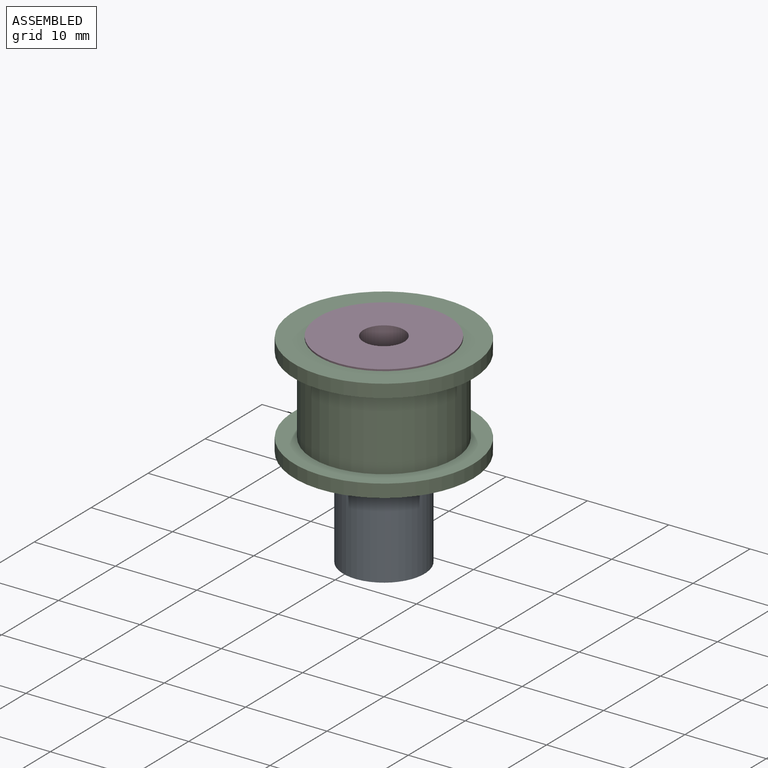
[diagram: assembled view]
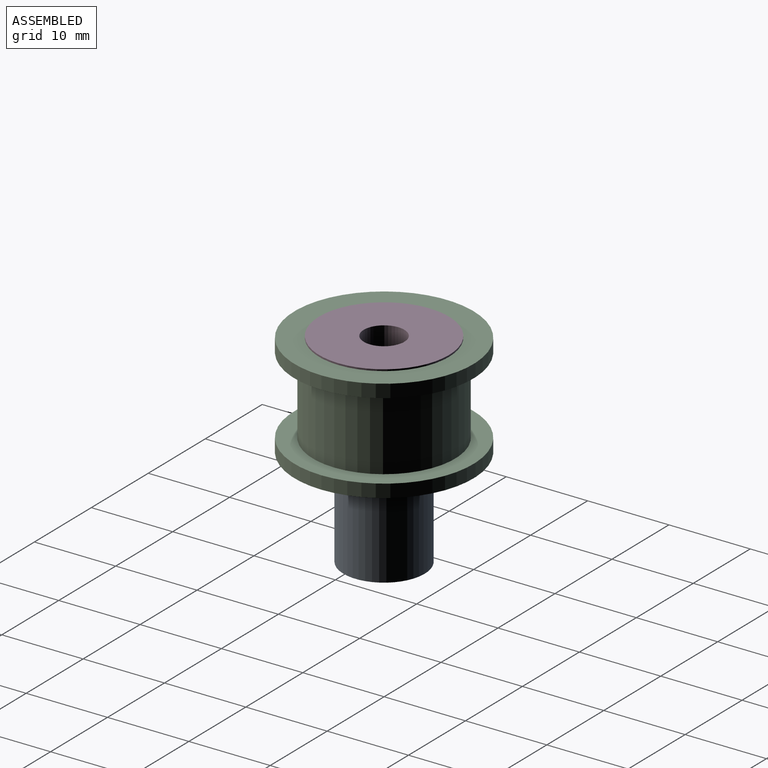
[diagram: assembled view, second angle]
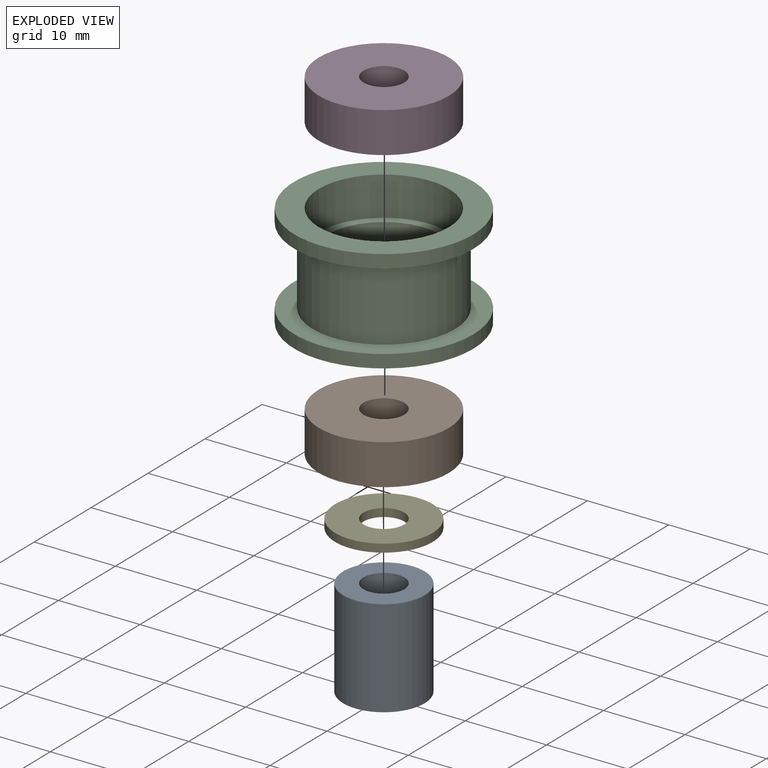
[diagram: exploded view]
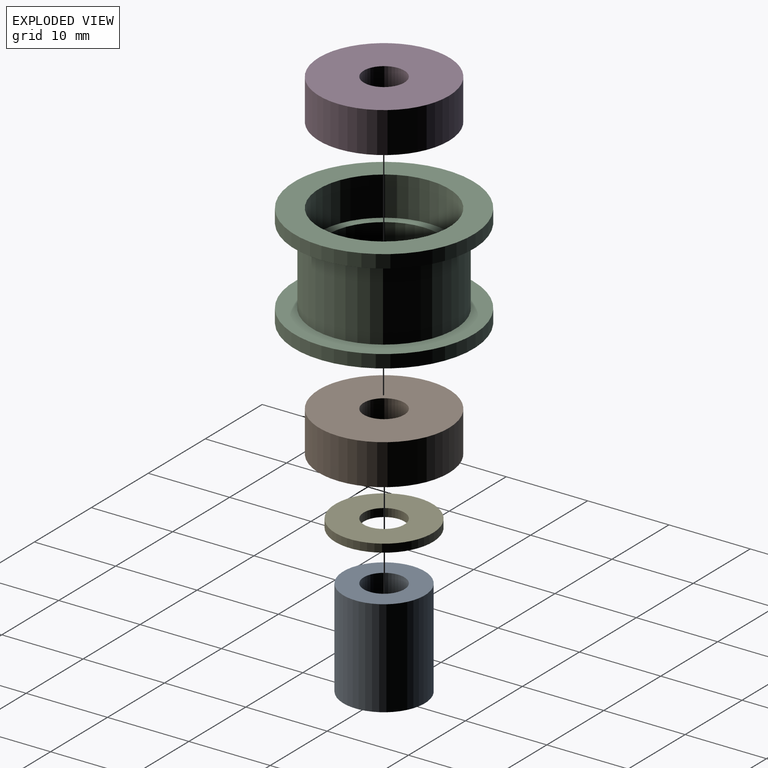
[diagram: exploded view, second angle]
ASSEMBLY  parts=5 mates=4
PART A: 4 faces, bbox 10x10x12 mm
  f0: cylinder r=2.5mm len=12mm, axis (0,0,1), area 188.5mm2, adj f2,f3
  f1: cylinder r=5mm len=12mm, axis (0,0,1), area 377mm2, adj f2,f3
  f2: plane 10x10mm, normal (0,0,-1), area 58.9mm2, adj f0,f1
  f3: plane 10x10mm, normal (0,0,1), area 58.9mm2, adj f0,f1
PART B: 4 faces, bbox 16x16x5 mm
  f0: cylinder r=7.99mm len=15.97mm, axis (0,0,1), area 250.9mm2, adj f2,f3
  f1: cylinder r=2.5mm len=5mm, axis (0,0,1), area 78.5mm2, adj f2,f3
  f2: plane 15.97x15.97mm, normal (0,0,-1), area 180.8mm2, adj f0,f1
  f3: plane 15.97x15.97mm, normal (0,0,1), area 180.8mm2, adj f0,f1
PART C: 12 faces, bbox 22x22x12.7 mm
  f0: cylinder r=8.75mm len=17.5mm, axis (0,0,1), area 522.3mm2, adj f1,f11
  f1: plane 22x22mm, normal (0,0,-1), area 139.6mm2, adj f0,f2
  f2: cylinder r=11mm len=22mm, axis (0,0,1), area 110.6mm2, adj f1,f3
  f3: plane 22x22mm, normal (0,0,1), area 179.7mm2, adj f2,f4
  f4: cylinder r=7.99mm len=15.97mm, axis (0,0,1), area 240.9mm2, adj f3,f5
  f5: plane 15.97x15.97mm, normal (0,0,1), area 48.9mm2, adj f4,f6
  f6: cylinder r=6.94mm len=13.89mm, axis (0,0,1), area 135.3mm2, adj f5,f7
  f7: plane 15.97x15.97mm, normal (0,0,-1), area 48.9mm2, adj f6,f8
  f8: cylinder r=7.99mm len=15.97mm, axis (0,0,1), area 240.9mm2, adj f7,f9
  f9: plane 22x22mm, normal (0,0,-1), area 179.7mm2, adj f8,f10
  f10: cylinder r=11mm len=22mm, axis (0,0,1), area 110.6mm2, adj f9,f11
  f11: plane 22x22mm, normal (0,0,1), area 139.6mm2, adj f0,f10
PART D: 4 faces, bbox 16x16x5 mm
  f0: cylinder r=7.99mm len=15.97mm, axis (0,0,-1), area 250.9mm2, adj f2,f3
  f1: cylinder r=2.5mm len=5mm, axis (0,0,-1), area 78.5mm2, adj f2,f3
  f2: plane 15.97x15.97mm, normal (0,0,1), area 180.8mm2, adj f0,f1
  f3: plane 15.97x15.97mm, normal (0,0,-1), area 180.8mm2, adj f0,f1
PART E: 4 faces, bbox 12x12x1 mm
  f0: cylinder r=2.5mm len=5mm, axis (0,0,1), area 15.7mm2, adj f2,f3
  f1: cylinder r=6mm len=12mm, axis (0,0,1), area 37.7mm2, adj f2,f3
  f2: plane 12x12mm, normal (0,0,-1), area 93.5mm2, adj f0,f1
  f3: plane 12x12mm, normal (0,0,1), area 93.5mm2, adj f0,f1
PLACE A at identity
PLACE B at identity
PLACE C at identity fixed
PLACE D at identity
PLACE E at identity
MATE fastened B.f1 <-> C.f0  axis (0,0,1) through (0,0,-1.55)mm
MATE fastened A.f0 <-> B.f1  axis (0,0,1) through (0,0,-6.55)mm
MATE fastened E.f0 <-> B.f1  axis (0,0,1) through (0,0,-6.55)mm
MATE fastened C.f0 <-> D.f1  axis (0,0,1) through (0,0,1.55)mm
